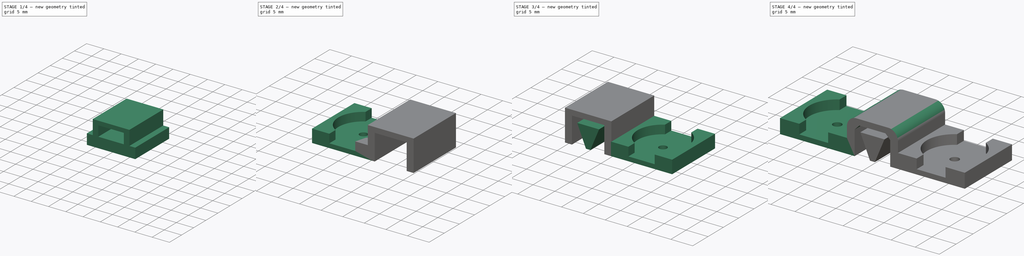
[diagram: build sequence overview — one tinted view per stage of 4, left to right]
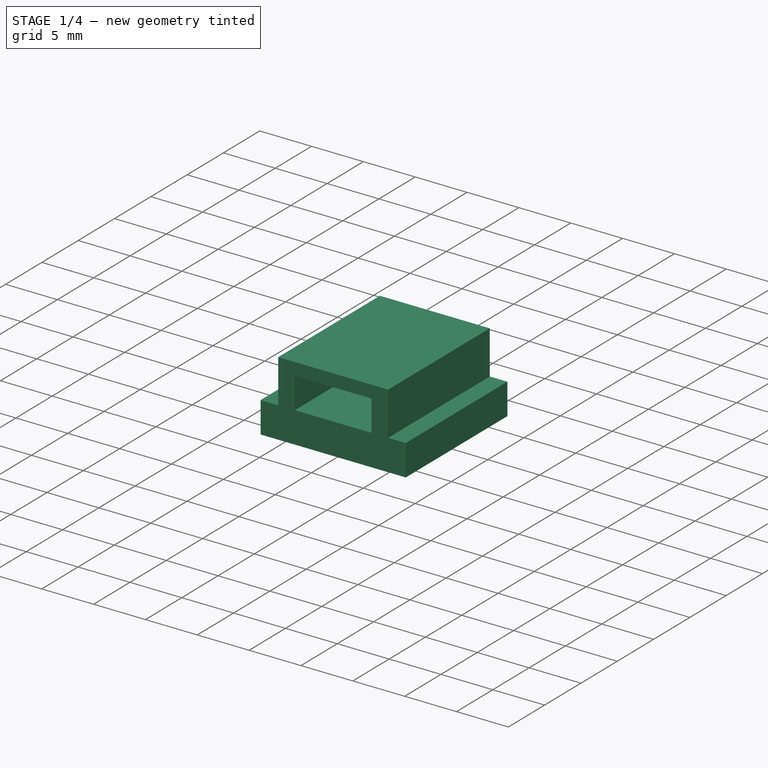
[diagram: stage 1 of 4 — iso view after this stage's code; geometry added in this stage tinted green]
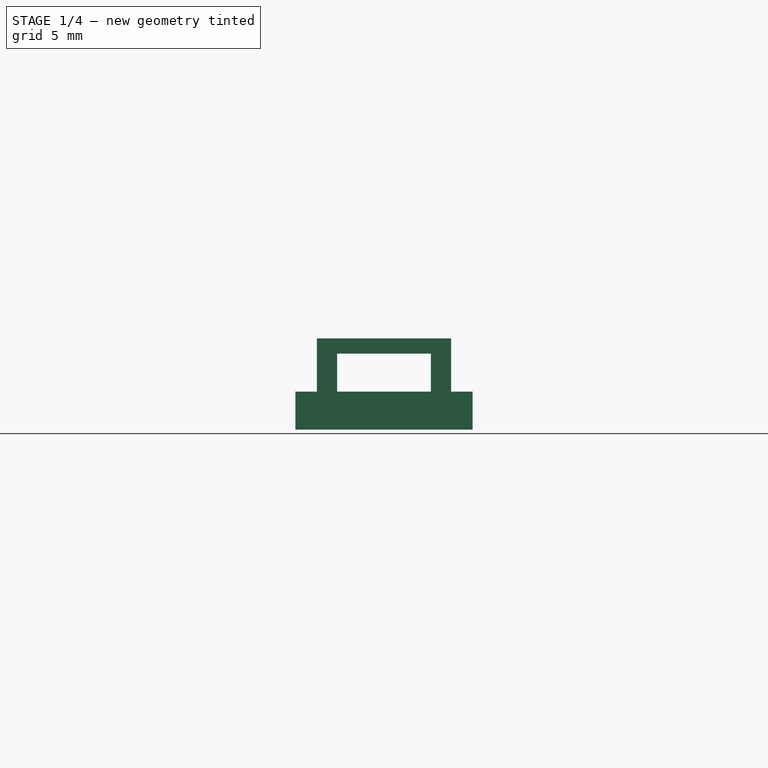
[diagram: stage 1 of 4 — front view after this stage's code; geometry added in this stage tinted green]
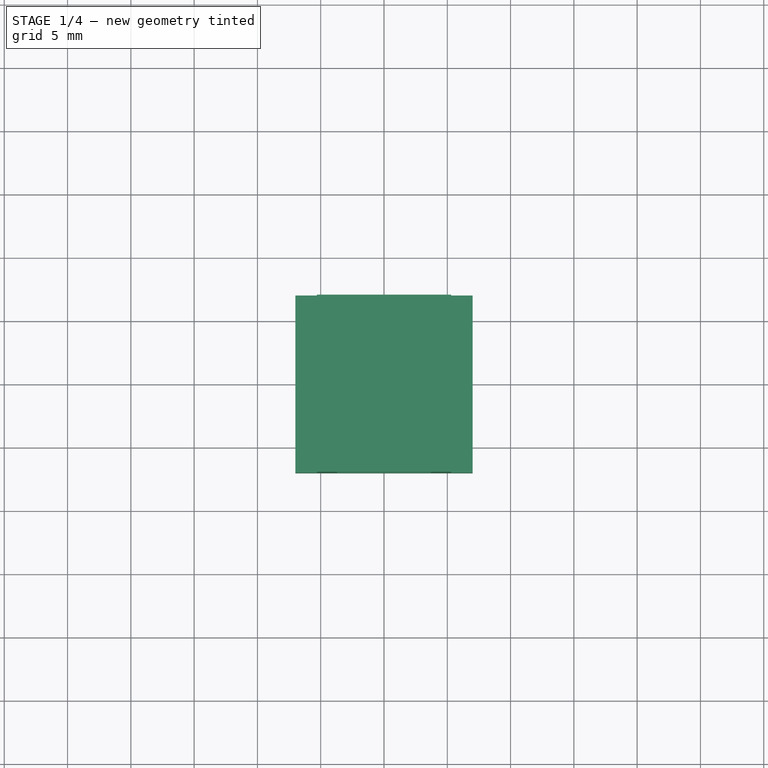
[diagram: stage 1 of 4 — top view after this stage's code; geometry added in this stage tinted green]
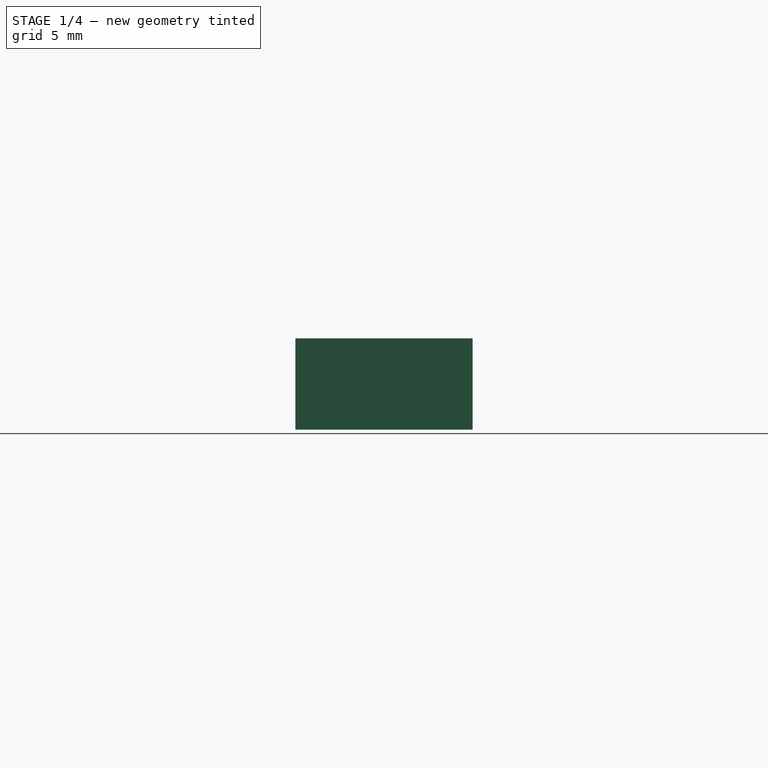
[diagram: stage 1 of 4 — right view after this stage's code; geometry added in this stage tinted green]
FCSTD DOCUMENT  (FreeCAD 0.17R13509 (Git))
Label: wir-holder_grande
License: CreativeCommons Attribution-ShareAlike
LicenseURL: http://creativecommons.org/licenses/by-sa/4.0/
objects: Part::FeaturePython×5, Sketcher::SketchObject×4, App::DocumentObjectGroup×3, PartDesign::Pad×2, PartDesign::Pocket×2, Part::MultiFuse×1, Part::Fillet×1, Part::Chamfer×1, Part::Wedge×1
note: 21 computed .brp shape members not serialized (recipe doc carries the construction recipe); baked Part::Feature solids carry a one-line shape summary decoded from their .brp

FEATURE [Sketcher::SketchObject] Sketch006  label="pp-unit-body-sketch"
  MapMode = 5
  sketch-geometry (4):
    g0: LineSegment StartX=-7 StartY=7 StartZ=0 EndX=7 EndY=7 EndZ=0
    g1: LineSegment StartX=7 StartY=7 StartZ=0 EndX=7 EndY=-7 EndZ=0
    g2: LineSegment StartX=7 StartY=-7 StartZ=0 EndX=-7 EndY=-7 EndZ=0
    g3: LineSegment StartX=-7 StartY=-7 StartZ=0 EndX=-7 EndY=7 EndZ=0
  constraints (11):
    c: Coincident(g0,g1)
    c: Coincident(g1,g2)
    c: Coincident(g2,g3)
    c: Coincident(g3,g0)
    c: Horizontal(g0)
    c: Horizontal(g2)
    c: Vertical(g1)
    c: Vertical(g3)
    c: Symmetric(g0,g1,g-1)
    c: Equal(g3,g0)
    c: DistanceX(g0,g0) = 14
FEATURE [PartDesign::Pad] Pad002  label="push-pin-unit-body"
  Length = 3
  Length2 = 100
  Profile = -> Sketch006
  Refine = true
  Type = 0
FEATURE [Sketcher::SketchObject] Sketch  label="clamp-sketch"
  MapMode = 5
  Placement = pos=(0,0,0) rot=(1,0,0;1.5708rad)
  sketch-geometry (10):
    g0: LineSegment StartX=-3.7 StartY=7.2 StartZ=0 EndX=5.3 EndY=7.2 EndZ=0
    g1: LineSegment StartX=5.3 StartY=7.2 StartZ=0 EndX=5.3 EndY=0 EndZ=0
    g2: LineSegment StartX=5.3 StartY=0 StartZ=0 EndX=3.7 EndY=0 EndZ=0
    g3: LineSegment StartX=3.7 StartY=0 StartZ=0 EndX=3.7 EndY=6 EndZ=0
    g4: LineSegment StartX=3.7 StartY=6 StartZ=0 EndX=-3.7 EndY=6 EndZ=0
    g5: LineSegment StartX=-3.7 StartY=7.2 StartZ=0 EndX=-5.3 EndY=7.2 EndZ=0
    g6: LineSegment [constr] StartX=-3.7 StartY=7.2 StartZ=0 EndX=-3.7 EndY=6 EndZ=0
    g7: LineSegment StartX=-5.3 StartY=7.2 StartZ=0 EndX=-5.3 EndY=0 EndZ=0
    g8: LineSegment StartX=-5.3 StartY=0 StartZ=0 EndX=-3.7 EndY=0 EndZ=0
    g9: LineSegment StartX=-3.7 StartY=0 StartZ=0 EndX=-3.7 EndY=6 EndZ=0
  constraints (29):
    c: Horizontal(g0)
    c: Coincident(g0,g1)
    c: Vertical(g1)
    c: Coincident(g1,g2)
    c: Horizontal(g2)
    c: Coincident(g2,g3)
    c: Vertical(g3)
    c: Coincident(g3,g4)
    c: Horizontal(g4)
    c: PointOnObject(g2,g-1)
    c: DistanceY(g3,g3) = 6
    c: DistanceY(g4,g0) = 1.2
    c: DistanceX(g4,g2) = 7.4
    c: DistanceX(g2,g2) = 1.6
    c: Horizontal(g5)
    c: Coincident(g5,g0)
    c: Coincident(g6,g0)
    c: Coincident(g6,g4)
    c: Vertical(g6)
    c: Vertical(g7)
    c: Coincident(g7,g8)
    c: Horizontal(g8)
    c: Coincident(g8,g9)
    c: Vertical(g9)
    c: Coincident(g9,g4)
    c: PointOnObject(g8,g2)
    c: Coincident(g7,g5)
    c: Symmetric(g5,g0,g-2)
    c: Equal(g8,g2)
FEATURE [PartDesign::Pad] Pad  label="clamp"
  Length = 14
  Length2 = 100
  Midplane = true
  Placement = pos=(0,0,0) rot=(1,0,0;1.5708rad)
  Profile = -> Sketch
  Refine = true
  Type = 0
FEATURE [Part::FeaturePython] Clone001  label="clamp-unit"  # Draft clone (typed FeaturePython)
  Objects = -> [Pad]
  Placement = pos=(0,0,0) rot=(1,0,0;1.5708rad)
  Scale = (1,1,1)
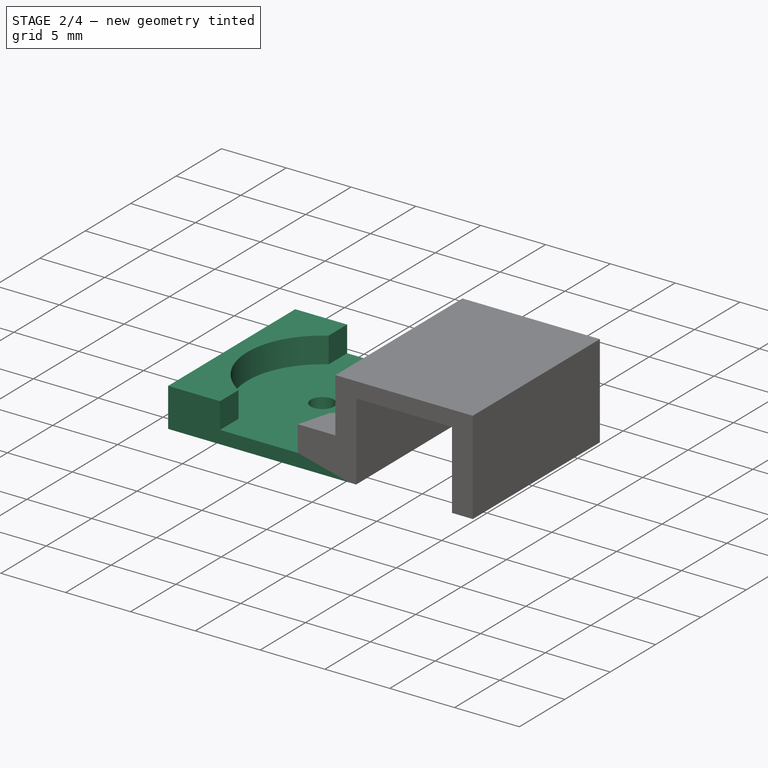
[diagram: stage 2 of 4 — iso view after this stage's code; geometry added in this stage tinted green]
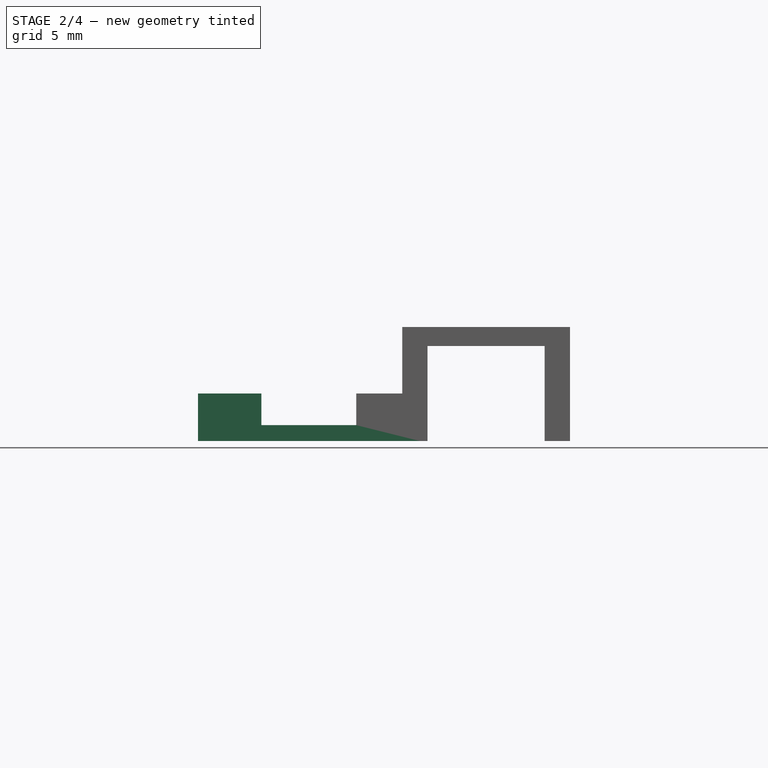
[diagram: stage 2 of 4 — front view after this stage's code; geometry added in this stage tinted green]
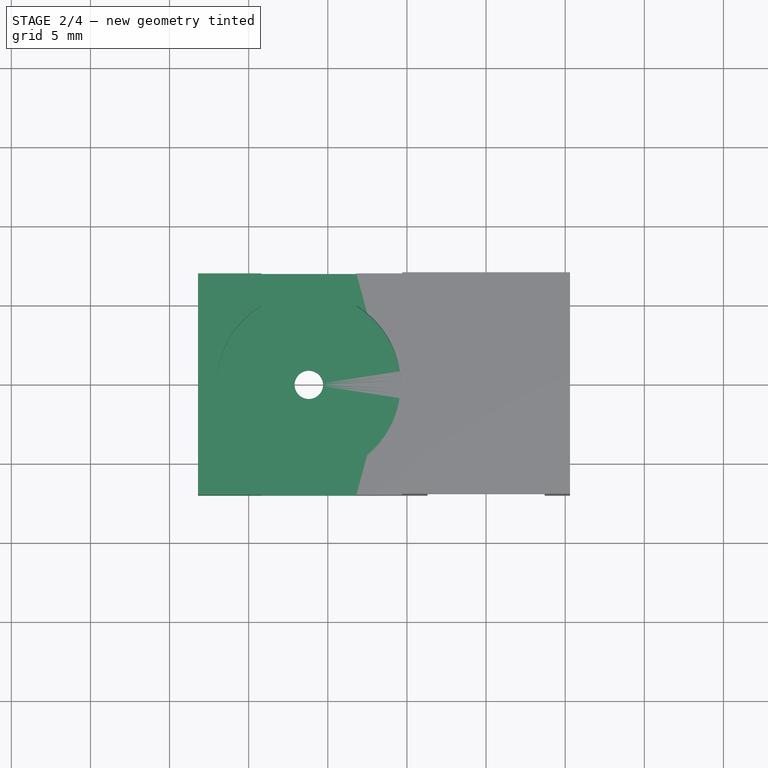
[diagram: stage 2 of 4 — top view after this stage's code; geometry added in this stage tinted green]
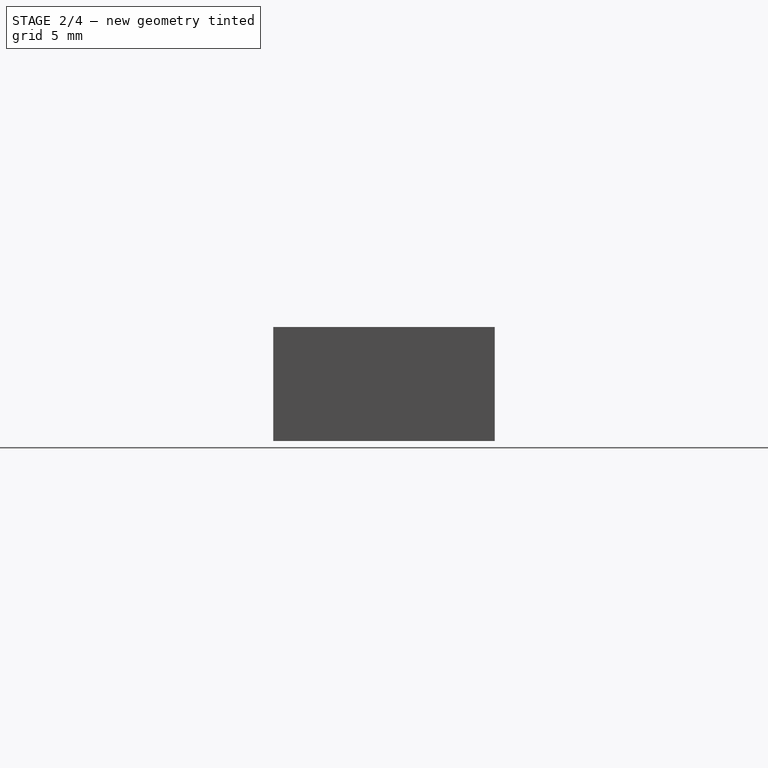
[diagram: stage 2 of 4 — right view after this stage's code; geometry added in this stage tinted green]
FEATURE [Sketcher::SketchObject] Sketch007  label="pushpin-top-cutout-sketch"
  ExternalGeometry = -> [Pad002]
  MapMode = 5
  Placement = pos=(0,0,3) rot=(0,0,1;0rad)
  Support = -> [Pad002]
  sketch-geometry (8):
    g0: LineSegment StartX=-3 StartY=7 StartZ=0 EndX=-3 EndY=4.96387 EndZ=0
    g1: ArcOfCircle CenterX=0 CenterY=0 CenterZ=0 NormalX=0 NormalY=0 NormalZ=1 AngleXU=0 Radius=5.8 StartAngle=2.11442 EndAngle=4.16876
    g2: LineSegment StartX=-3 StartY=-7 StartZ=0 EndX=-3 EndY=-4.96387 EndZ=0
    g3: LineSegment StartX=-3 StartY=7 StartZ=0 EndX=3 EndY=7 EndZ=0
    g4: LineSegment StartX=3 StartY=7 StartZ=0 EndX=3 EndY=4.96387 EndZ=0
    g5: ArcOfCircle CenterX=0 CenterY=0 CenterZ=0 NormalX=0 NormalY=0 NormalZ=1 AngleXU=0 Radius=5.8 StartAngle=5.25601 EndAngle=7.31036
    g6: LineSegment StartX=3 StartY=-4.96387 StartZ=0 EndX=3 EndY=-7 EndZ=0
    g7: LineSegment StartX=3 StartY=-7 StartZ=0 EndX=-3 EndY=-7 EndZ=0
  constraints (23):
    c: Radius(g1) = 5.8
    c: Coincident(g1,g0)
    c: Coincident(g1,g-1)
    c: PointOnObject(g1,g0)
    c: Vertical(g2)
    c: Coincident(g2,g1)
    c: Coincident(g0,g3)
    c: Horizontal(g3)
    c: Coincident(g3,g4)
    c: Vertical(g4)
    c: PointOnObject(g0,g-3)
    c: DistanceX(g0,g3) = 6
    c: Symmetric(g2,g0,g-1)
    c: Symmetric(g0,g3,g-2)
    c: Coincident(g5,g-1)
    c: Coincident(g4,g5)
    c: Symmetric(g0,g4,g-2)
    c: Vertical(g6)
    c: Coincident(g6,g7)
    c: Horizontal(g7)
    c: Coincident(g7,g2)
    c: Coincident(g6,g5)
    c: Symmetric(g6,g2,g-2)
FEATURE [PartDesign::Pocket] Pocket004  label="pushpin-top-cutout"
  Length = 2
  Length2 = 100
  Profile = -> Sketch007
  Refine = true
  Type = 0
FEATURE [Sketcher::SketchObject] Sketch008  label="pushpin-hole-sketch"
  MapMode = 5
  Placement = pos=(0,0,1) rot=(0,0,1;0rad)
  Support = -> [Pocket004]
  sketch-geometry (1):
    g0: Circle CenterX=0 CenterY=0 CenterZ=0 NormalX=0 NormalY=0 NormalZ=1 AngleXU=0 Radius=0.9
  constraints (2):
    c: Coincident(g0,g-1)
    c: Radius(g0) = 0.9
FEATURE [PartDesign::Pocket] Pocket005  label="pushpin-hole"
  Length = 5
  Length2 = 100
  Profile = -> Sketch008
  Refine = true
  Type = 1
FEATURE [Part::FeaturePython] Clone  label="pushpin-unit1"  # Draft clone (typed FeaturePython)
  Objects = -> [Pocket005]
  Placement = pos=(-11.2,0,0) rot=(0,0,1;0rad)
  Scale = (1,1,1)
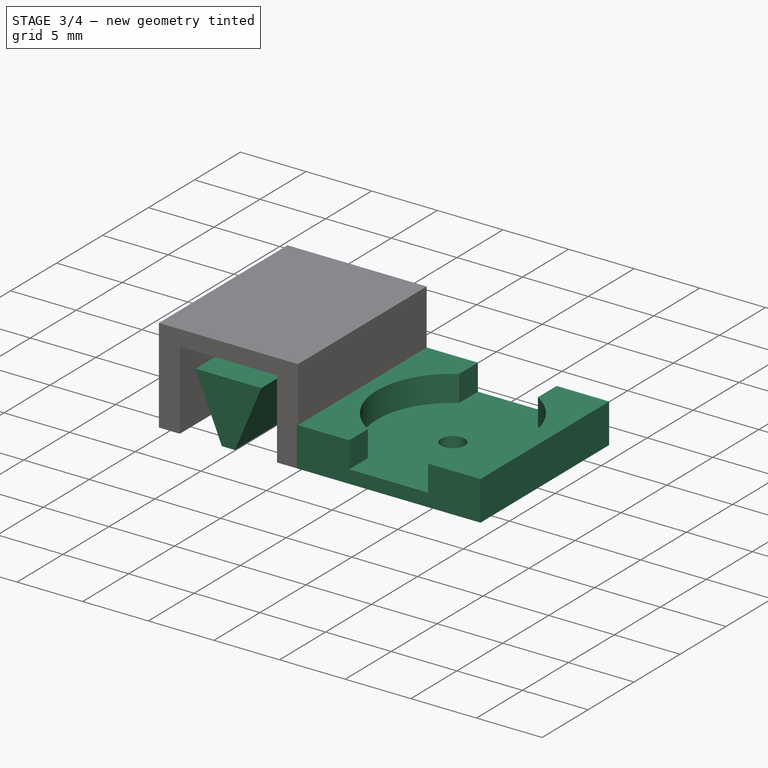
[diagram: stage 3 of 4 — iso view after this stage's code; geometry added in this stage tinted green]
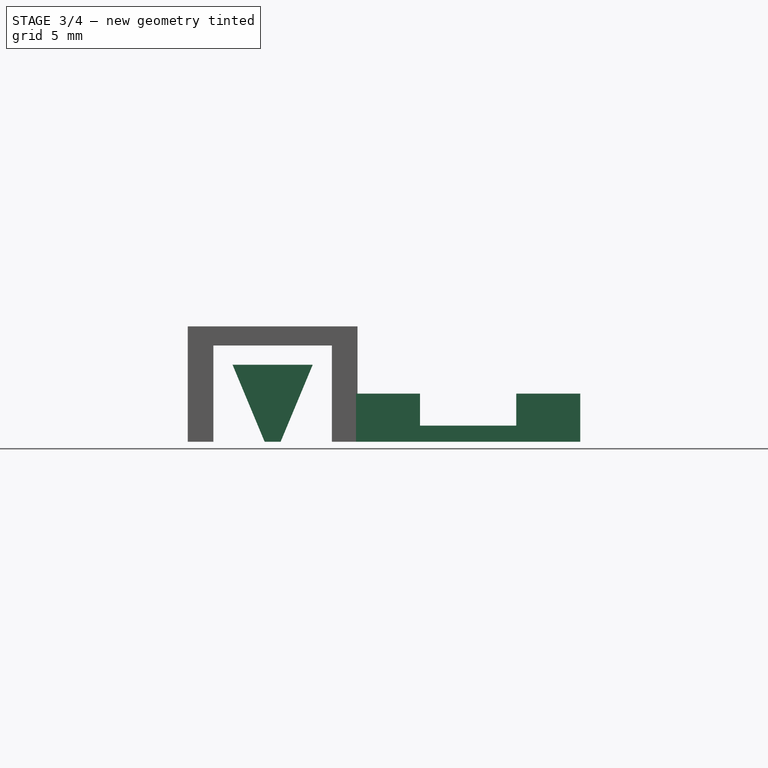
[diagram: stage 3 of 4 — front view after this stage's code; geometry added in this stage tinted green]
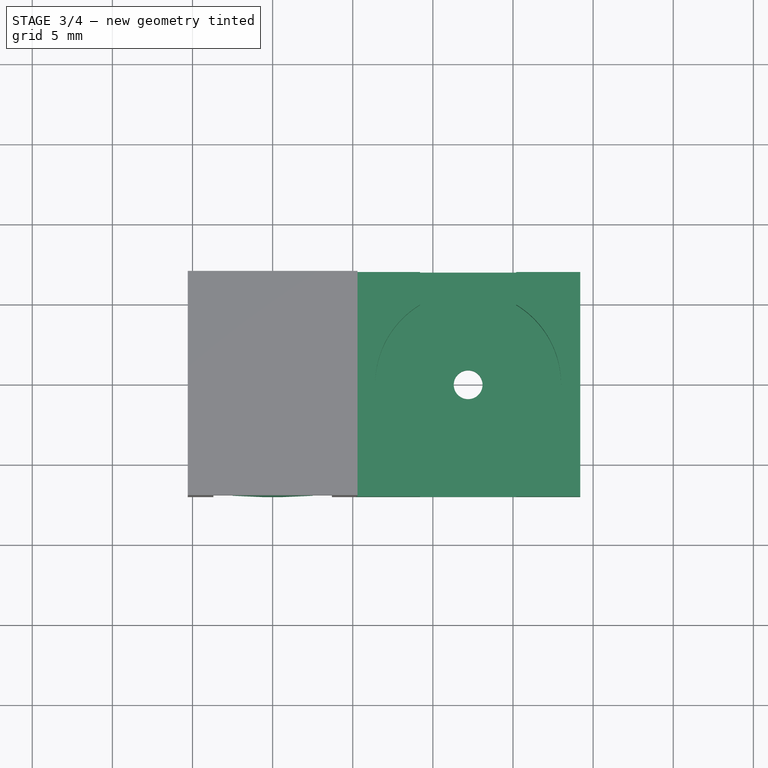
[diagram: stage 3 of 4 — top view after this stage's code; geometry added in this stage tinted green]
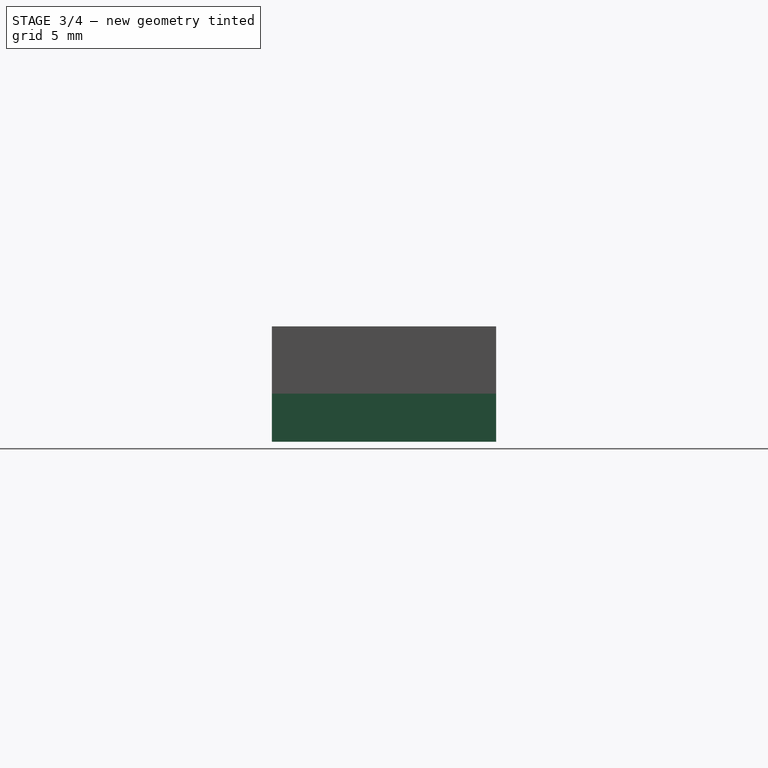
[diagram: stage 3 of 4 — right view after this stage's code; geometry added in this stage tinted green]
FEATURE [Part::FeaturePython] Clone002  label="pushpin-unit002"  # Draft clone (typed FeaturePython)
  Objects = -> [Clone]
  Placement = pos=(-12.2,0,0) rot=(0,0,1;0rad)
  Scale = (1,1,1)
FEATURE [Part::FeaturePython] Clone003  label="clamp-unit001"  # Draft clone (typed FeaturePython)
  Objects = -> [Clone001]
  Placement = pos=(0,0,0) rot=(1,0,0;1.5708rad)
  Scale = (1,1,1)
FEATURE [Part::FeaturePython] Clone004  label="pushpin-unit003"  # Draft clone (typed FeaturePython)
  Objects = -> [Clone002]
  Placement = pos=(12.2,0,0) rot=(0,0,1;0rad)
  Scale = (1,1,1)
FEATURE [Part::Wedge] Wedge  label="Soporte"
  AttacherType = Attacher::AttachEngine3D
  Placement = pos=(0.5,1,0) rot=(-1,0,0;1.5708rad)
  X2max = 0
  X2min = -1
  Xmax = 2
  Xmin = -3
  Ymax = 0
  Ymin = -4.8
  Z2max = 6
  Z2min = -8
  Zmax = 6
  Zmin = -8
FEATURE [App::DocumentObjectGroup] Grupo  label="src-Clamp-unit"
  Group = -> [Pad]
FEATURE [App::DocumentObjectGroup] Grupo001  label="src-pushpin-units"
  Group = -> [Pad002,Pocket004,Pocket005]
FEATURE [App::DocumentObjectGroup] Grupo002  label="src-wire-holder-single"
  Group = -> [Clone,Clone001]
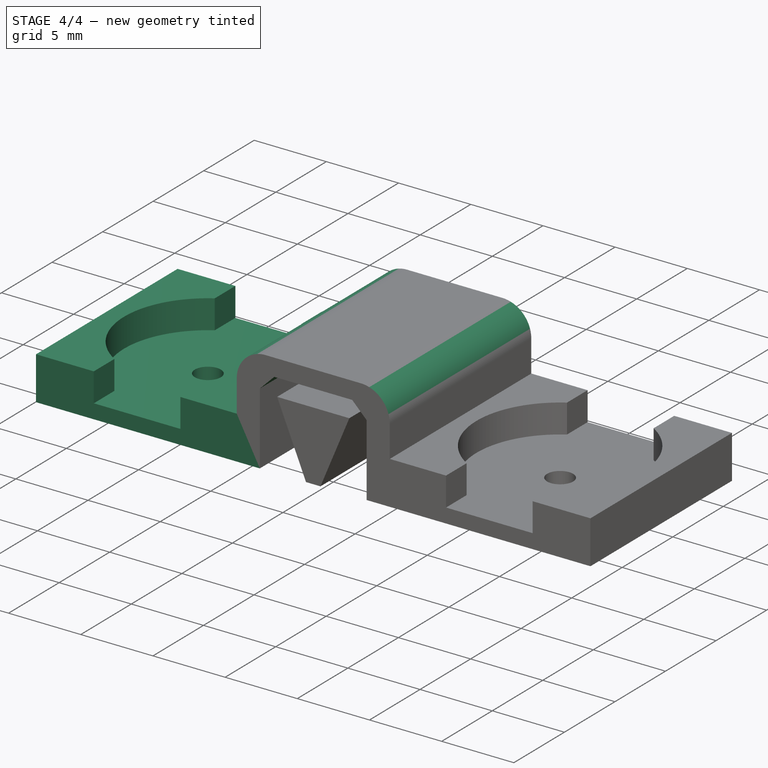
[diagram: stage 4 of 4 — iso view after this stage's code; geometry added in this stage tinted green]
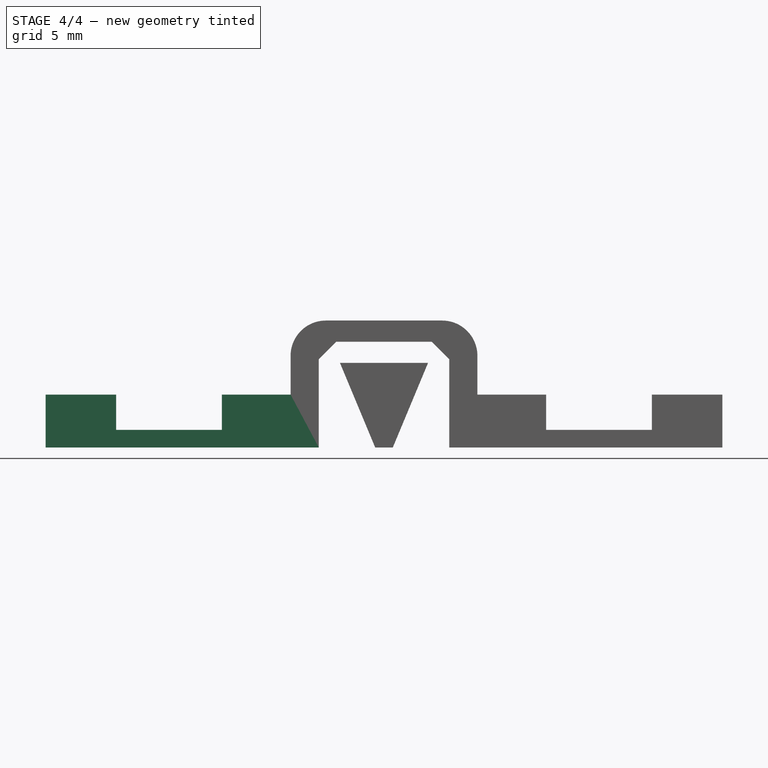
[diagram: stage 4 of 4 — front view after this stage's code; geometry added in this stage tinted green]
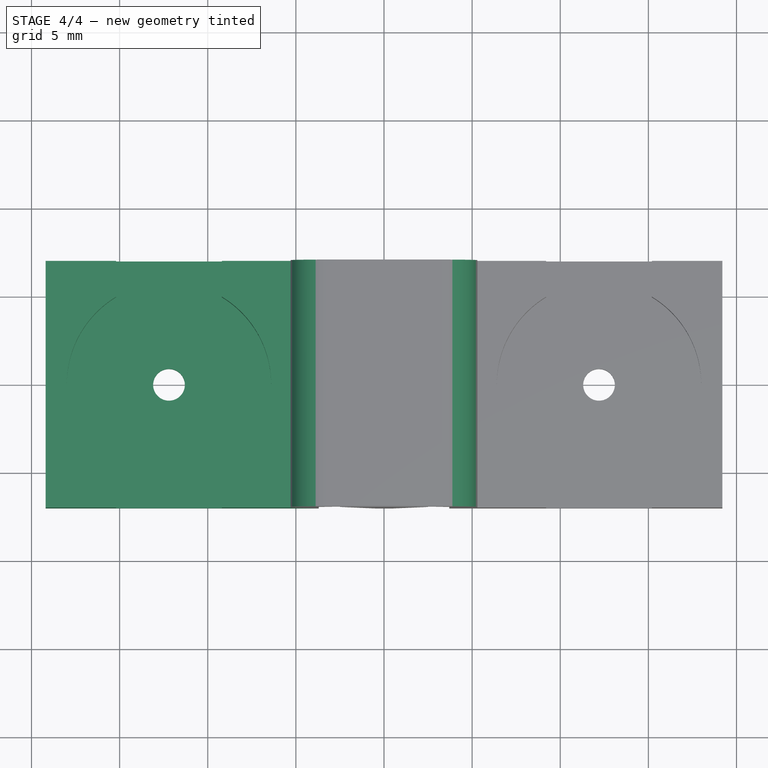
[diagram: stage 4 of 4 — top view after this stage's code; geometry added in this stage tinted green]
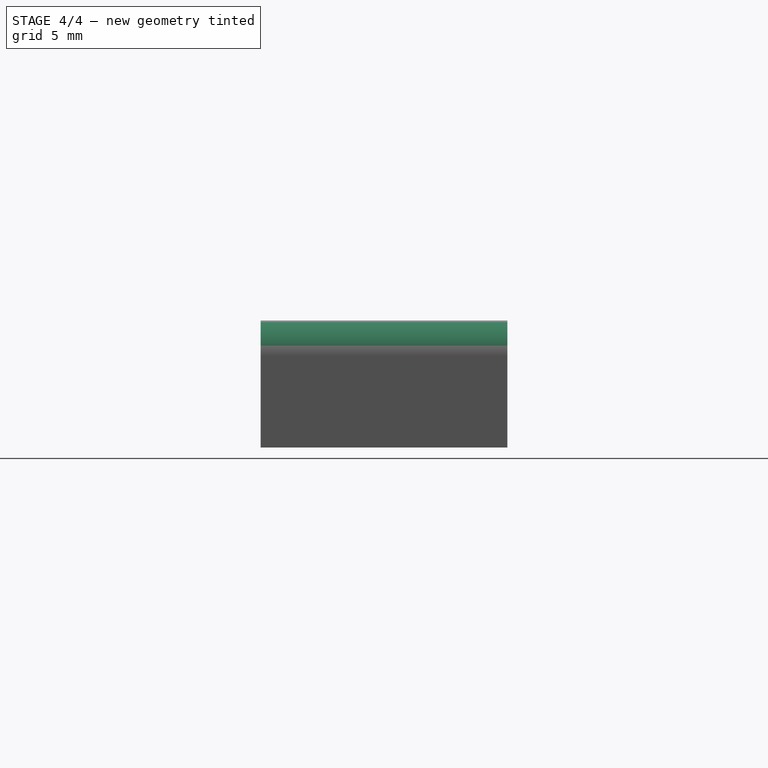
[diagram: stage 4 of 4 — right view after this stage's code; geometry added in this stage tinted green]
FEATURE [Part::MultiFuse] Fusion001  label="wire-holder-double-fusion"
  Refine = true
  Shapes = -> [Clone002,Clone003,Clone004]
FEATURE [Part::Fillet] Fillet001
  Base = -> Fusion001
  Edges = 2 edges r=2: [Edge57,Edge58]
FEATURE [Part::Chamfer] Chamfer  label="Sujeta-cables-grande"
  Base = -> Fillet001
  Edges = 2 edges r=1: [Edge73,Edge79]
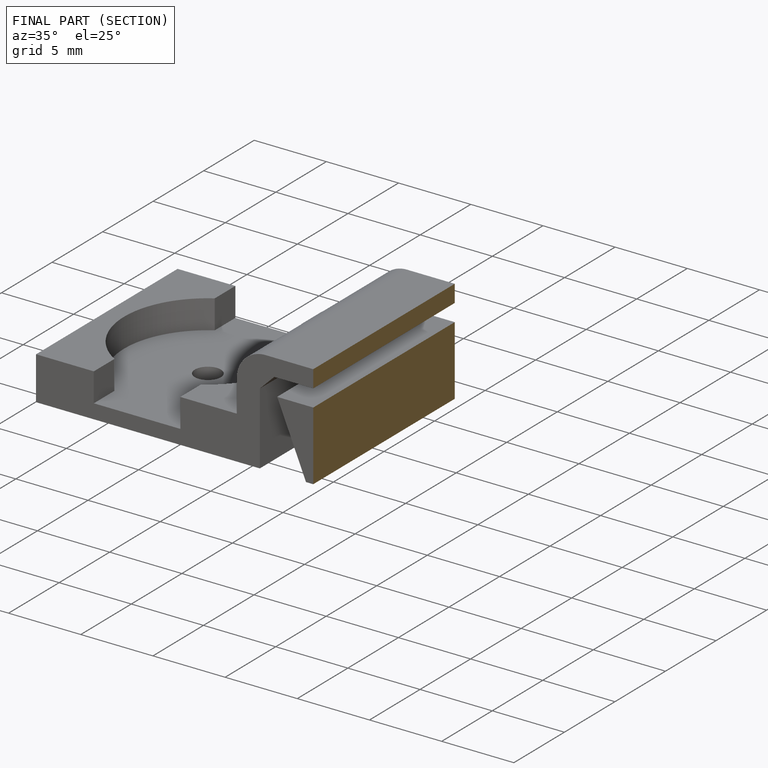
[diagram: finished part — half-section view (interior)]
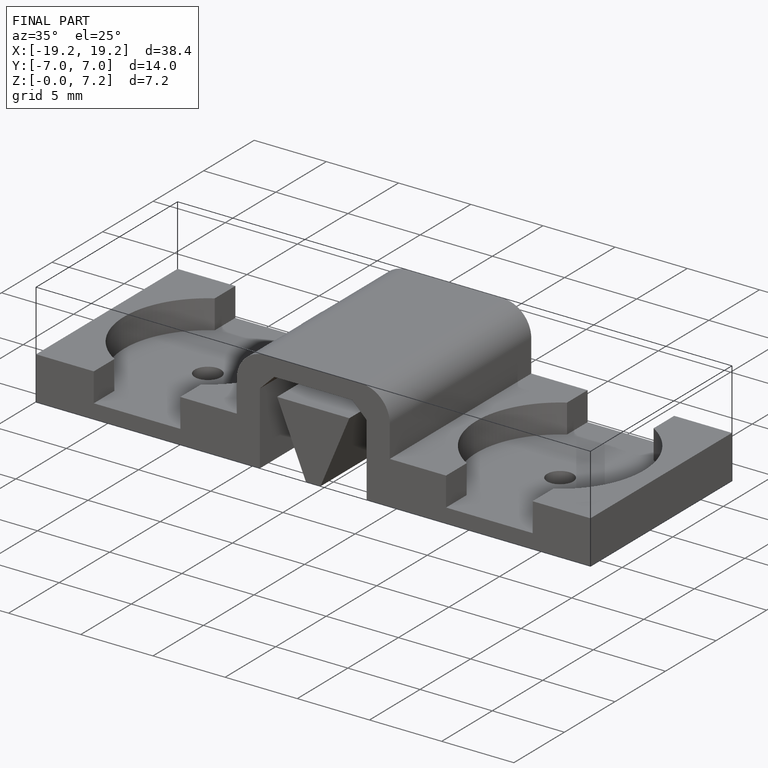
[diagram: finished part — iso view with bounding-box wireframe]
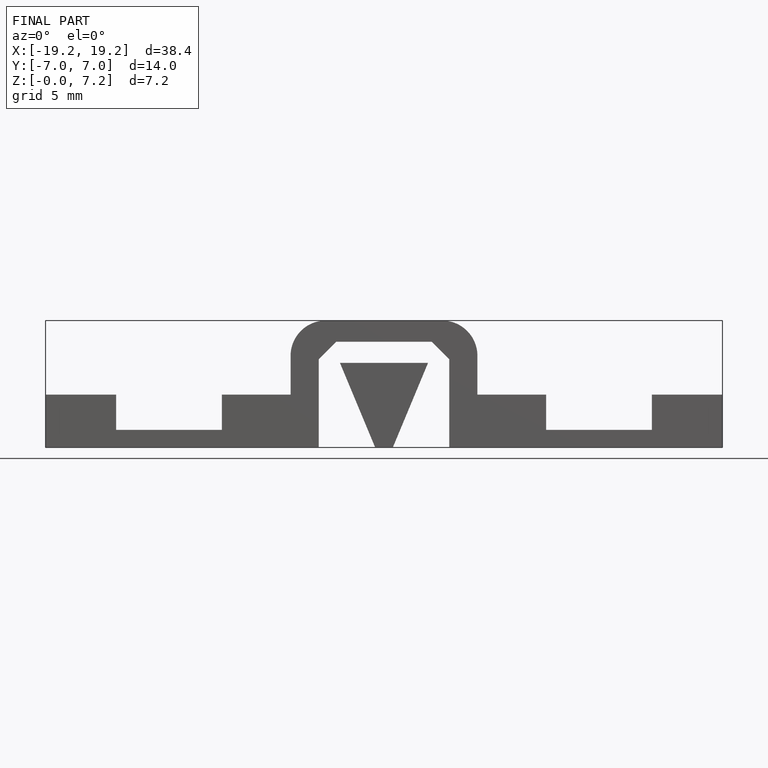
[diagram: finished part — front view with bounding-box wireframe]
